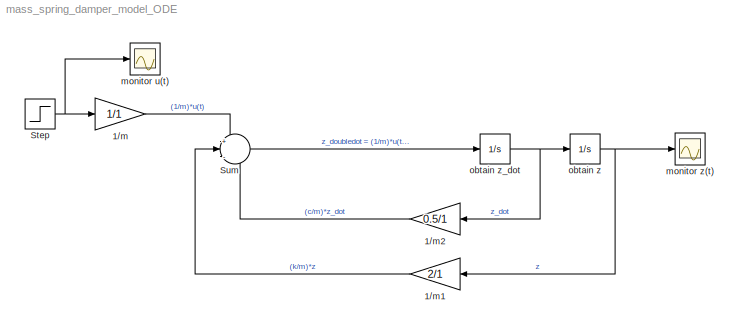
MODEL mass_spring_damper_model_ODE
KIND model
BLOCK [Gain] 1//m
  Gain = 1/1
  OutDataTypeMode = Inherit via internal rule
  ParameterDataTypeMode = Inherit via internal rule
  SaturateOnIntegerOverflow = off
BLOCK [Gain] 1//m1
  Gain = 2/1
  OutDataTypeMode = Inherit via internal rule
  ParameterDataTypeMode = Inherit via internal rule
  SaturateOnIntegerOverflow = off
BLOCK [Gain] 1//m2
  Gain = 0.5/1
  OutDataTypeMode = Inherit via internal rule
  ParameterDataTypeMode = Inherit via internal rule
  SaturateOnIntegerOverflow = off
BLOCK [Step] Step
  SampleTime = 0
BLOCK [Sum] Sum
  CollapseMode = All dimensions
  IconShape = round
  InputSameDT = off
  Inputs = +|-|-
  OutDataTypeMode = Inherit via internal rule
  Ports = [3, 1]
  SaturateOnIntegerOverflow = off
BLOCK [Scope] monitor u(t)
  DataFormat = StructureWithTime
  Floating = off
  NumInputPorts = 1
  Ports = [1]
  SampleTime = 0
  SaveName = ScopeData1
BLOCK [Scope] monitor z(t)
  DataFormat = StructureWithTime
  Floating = off
  NumInputPorts = 1
  Ports = [1]
  SampleTime = 0
  TimeRange = 10
BLOCK [Integrator] obtain z
  IgnoreLimit = off
  Ports = [1, 1]
BLOCK [Integrator] obtain z_dot
  IgnoreLimit = off
  Ports = [1, 1]
LINE 1//m1:1 -> Sum:2
LINE 1//m2:1 -> Sum:3
LINE 1//m:1 -> Sum:1
NET Step:1 -> 1//m:1, monitor u(t):1
LINE Sum:1 -> obtain z_dot:1
NET obtain z:1 -> 1//m1:1, monitor z(t):1
NET obtain z_dot:1 -> 1//m2:1, obtain z:1
note: NET lines group one-source signal fan-out (src -> all destinations, sorted); 1:1 wires keep LINE
